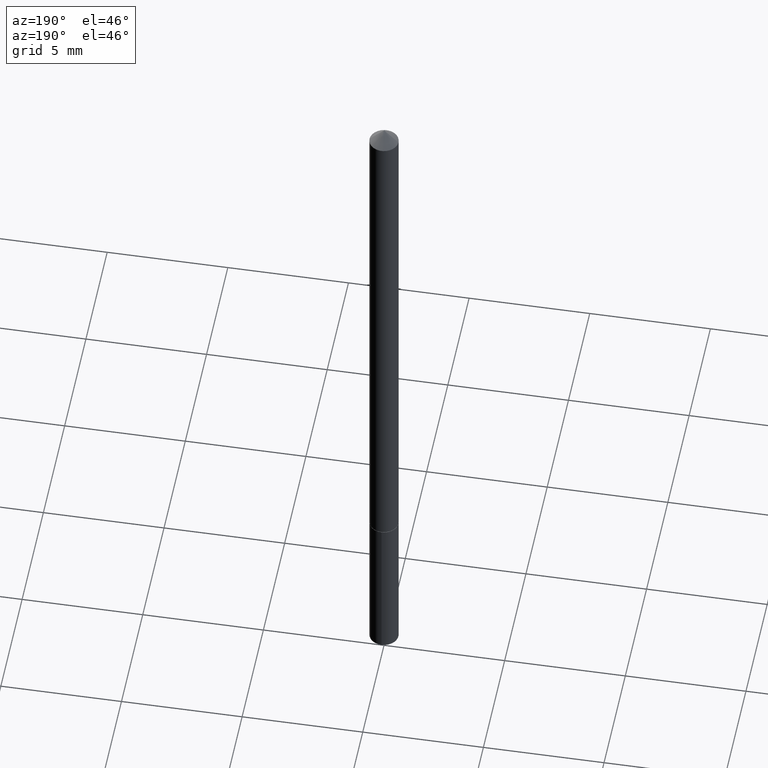
[diagram: clean part render]
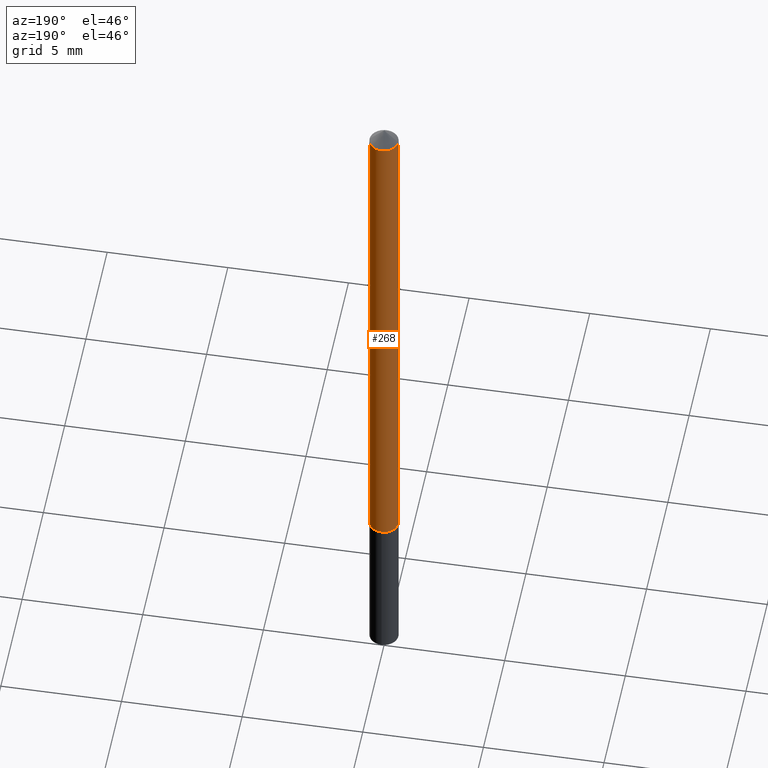
[diagram: same view with one face highlighted and labeled with its STEP entity id]
A machine part, auxiliary view. The second image highlights one B-rep face of the part: STEP entity #268.
In plain terms, the highlighted cylindrical surface (edge-blend (fillet) strip) has radius 0.5994 mm, axis along (-0, 0, 1).
Its self-contained STEP definition (entity closure, byte-faithful):
#16 = AXIS2_PLACEMENT_3D ( 'NONE', #82, #167, #33 ) ;
#27 = DIRECTION ( 'NONE',  ( -2.445468806185136877E-29, 3.491481338843145188E-15, 1.000000000000000000 ) ) ;
#29 = CARTESIAN_POINT ( 'NONE',  ( 7.642090019328602662E-31, -1.091087918388490267E-16, -0.03125000000000020817 ) ) ;
#33 = DIRECTION ( 'NONE',  ( 1.000000000000000000, -6.982962677686267499E-15, 0.000000000000000000 ) ) ;
#62 = CIRCLE ( 'NONE', #16, 0.02360000000000010700 ) ;
#64 = DIRECTION ( 'NONE',  ( 1.000000000000000000, -6.982962677686265133E-15, 4.876176775795935793E-29 ) ) ;
#82 = CARTESIAN_POINT ( 'NONE',  ( 2.232223926285792489E-29, -3.187024166096022738E-15, -0.9127999999999999448 ) ) ;
#93 = CARTESIAN_POINT ( 'NONE',  ( -0.02360000000000005843, 1.676880856393840590E-16, -1.160868681300160606E-30 ) ) ;
#95 = FACE_OUTER_BOUND ( 'NONE', #264, .T. ) ;
#101 = ORIENTED_EDGE ( 'NONE', *, *, #148, .F. ) ;
#107 = ORIENTED_EDGE ( 'NONE', *, *, #194, .T. ) ;
#113 = DIRECTION ( 'NONE',  ( -2.445468806185136597E-29, 3.491481338843145583E-15, 1.000000000000000000 ) ) ;
#121 = VECTOR ( 'NONE', #150, 39.37007874015748143 ) ;
#136 = AXIS2_PLACEMENT_3D ( 'NONE', #29, #113, #255 ) ;
#148 = EDGE_CURVE ( 'NONE', #197, #243, #282, .T. ) ;
#150 = DIRECTION ( 'NONE',  ( -2.445468806185136877E-29, 3.491481338843145188E-15, 1.000000000000000000 ) ) ;
#156 = VERTEX_POINT ( 'NONE', #258 ) ;
#163 = ORIENTED_EDGE ( 'NONE', *, *, #227, .F. ) ;
#167 = DIRECTION ( 'NONE',  ( -2.445468806185136597E-29, 3.491481338843145583E-15, 1.000000000000000000 ) ) ;
#190 = AXIS2_PLACEMENT_3D ( 'NONE', #346, #266, #64 ) ;
#194 = EDGE_CURVE ( 'NONE', #197, #156, #62, .T. ) ;
#197 = VERTEX_POINT ( 'NONE', #252 ) ;
#211 = CYLINDRICAL_SURFACE ( 'NONE', #190, 0.02360000000000005843 ) ;
#224 = CARTESIAN_POINT ( 'NONE',  ( 0.02360000000000005843, -1.647979191933962724E-16, 1.150777719087843758E-30 ) ) ;
#227 = EDGE_CURVE ( 'NONE', #243, #249, #233, .T. ) ;
#228 = CARTESIAN_POINT ( 'NONE',  ( 0.02360000000000000639, -2.739067110322449540E-16, -0.03125000000000020817 ) ) ;
#233 = CIRCLE ( 'NONE', #136, 0.02360000000000000639 ) ;
#234 = LINE ( 'NONE', #93, #121 ) ;
#243 = VERTEX_POINT ( 'NONE', #228 ) ;
#249 = VERTEX_POINT ( 'NONE', #290 ) ;
#252 = CARTESIAN_POINT ( 'NONE',  ( 0.02360000000000010700, -3.351822085289419381E-15, -0.9127999999999999448 ) ) ;
#255 = DIRECTION ( 'NONE',  ( 1.000000000000000000, -6.982962677686267499E-15, 0.000000000000000000 ) ) ;
#258 = CARTESIAN_POINT ( 'NONE',  ( -0.02360000000000010700, -3.019336080456638236E-15, -0.9127999999999999448 ) ) ;
#264 = EDGE_LOOP ( 'NONE', ( #107, #304, #163, #101 ) ) ;
#266 = DIRECTION ( 'NONE',  ( -2.445468806185136597E-29, 3.491481338843145583E-15, 1.000000000000000000 ) ) ;
#268 = ADVANCED_FACE ( 'NONE', ( #95 ), #211, .T. ) ;
#282 = LINE ( 'NONE', #224, #356 ) ;
#290 = CARTESIAN_POINT ( 'NONE',  ( -0.02360000000000000639, -1.480378393328050233E-15, -0.03125000000000020817 ) ) ;
#304 = ORIENTED_EDGE ( 'NONE', *, *, #329, .T. ) ;
#329 = EDGE_CURVE ( 'NONE', #156, #249, #234, .T. ) ;
#346 = CARTESIAN_POINT ( 'NONE',  ( 0.000000000000000000, 0.000000000000000000, 0.000000000000000000 ) ) ;
#356 = VECTOR ( 'NONE', #27, 39.37007874015748143 ) ;